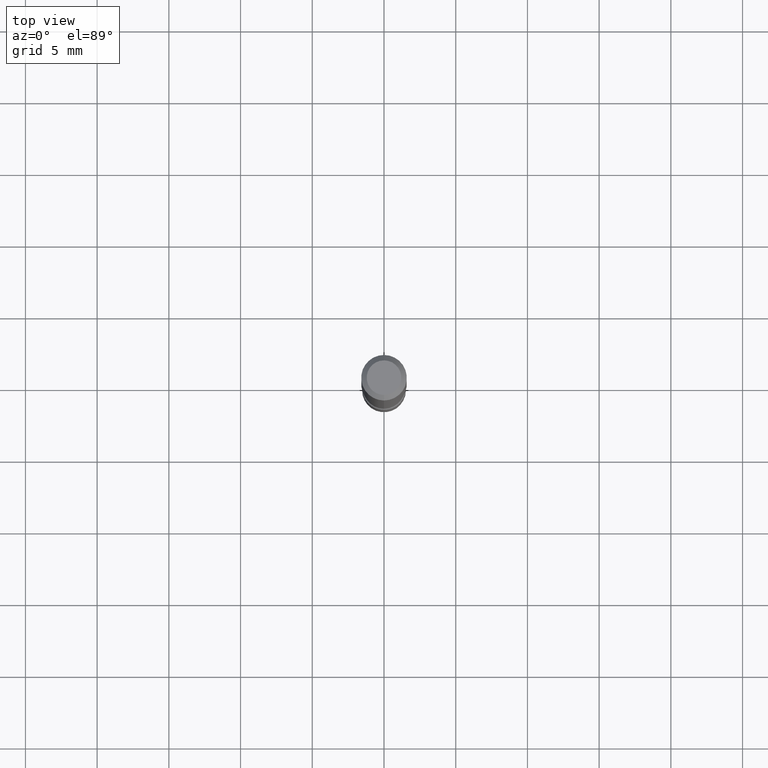
[diagram: clean part render]
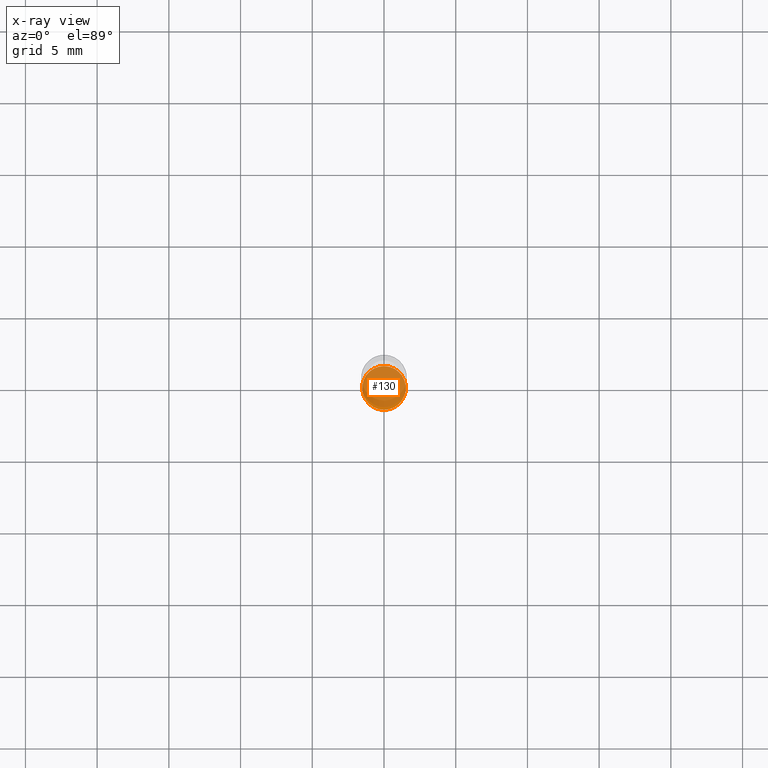
[diagram: x-ray — body ghosted, one internal face saturated and labeled with its STEP entity id]
A machine part, top view, then the same camera in x-ray: the body is ghosted and one INTERNAL B-rep face — a face not visible from any outside direction — is saturated and labeled: STEP entity #130.
In plain terms, the highlighted planar face has unit normal (-0, 0, 1).
Its self-contained STEP definition (entity closure, byte-faithful):
#23 = DIRECTION ( 'NONE',  ( -2.446045718082907403E-29, 3.490655168169751476E-15, 1.000000000000000000 ) ) ;
#33 = AXIS2_PLACEMENT_3D ( 'NONE', #63, #23, #427 ) ;
#49 = CARTESIAN_POINT ( 'NONE',  ( 4.263256414561002783E-16, 0.05999999999999428707, -1.640000000000000346 ) ) ;
#50 = CIRCLE ( 'NONE', #155, 0.05999999999999999778 ) ;
#51 = PLANE ( 'NONE',  #33 ) ;
#63 = CARTESIAN_POINT ( 'NONE',  ( 4.189777606612160768E-16, 0.05999999999999427319, -1.640000000000000346 ) ) ;
#114 = DIRECTION ( 'NONE',  ( -2.446045718082907683E-29, 3.490655168169751476E-15, 1.000000000000000000 ) ) ;
#115 = ORIENTED_EDGE ( 'NONE', *, *, #308, .F. ) ;
#130 = ADVANCED_FACE ( 'NONE', ( #252 ), #51, .F. ) ;
#155 = AXIS2_PLACEMENT_3D ( 'NONE', #417, #287, #242 ) ;
#221 = ORIENTED_EDGE ( 'NONE', *, *, #382, .F. ) ;
#242 = DIRECTION ( 'NONE',  ( -6.982962677686265922E-15, -1.000000000000000000, 4.553079989440439092E-15 ) ) ;
#252 = FACE_OUTER_BOUND ( 'NONE', #302, .T. ) ;
#256 = DIRECTION ( 'NONE',  ( -6.982962677686265922E-15, -1.000000000000000000, 4.553079989440439092E-15 ) ) ;
#287 = DIRECTION ( 'NONE',  ( -2.446045718082907683E-29, 3.490655168169751476E-15, 1.000000000000000000 ) ) ;
#300 = CARTESIAN_POINT ( 'NONE',  ( 4.011514977655969307E-29, -5.724674475798391900E-15, -1.639999999999999902 ) ) ;
#302 = EDGE_LOOP ( 'NONE', ( #115, #221 ) ) ;
#308 = EDGE_CURVE ( 'NONE', #419, #375, #50, .T. ) ;
#355 = CARTESIAN_POINT ( 'NONE',  ( -4.189777606611360074E-16, -0.06000000000000574318, -1.639999999999999680 ) ) ;
#364 = AXIS2_PLACEMENT_3D ( 'NONE', #300, #114, #256 ) ;
#375 = VERTEX_POINT ( 'NONE', #49 ) ;
#382 = EDGE_CURVE ( 'NONE', #375, #419, #512, .T. ) ;
#417 = CARTESIAN_POINT ( 'NONE',  ( 4.011514977655969307E-29, -5.724674475798391900E-15, -1.639999999999999902 ) ) ;
#419 = VERTEX_POINT ( 'NONE', #355 ) ;
#427 = DIRECTION ( 'NONE',  ( -6.982962677686265922E-15, -1.000000000000000000, 3.490655168169751476E-15 ) ) ;
#512 = CIRCLE ( 'NONE', #364, 0.05999999999999999778 ) ;